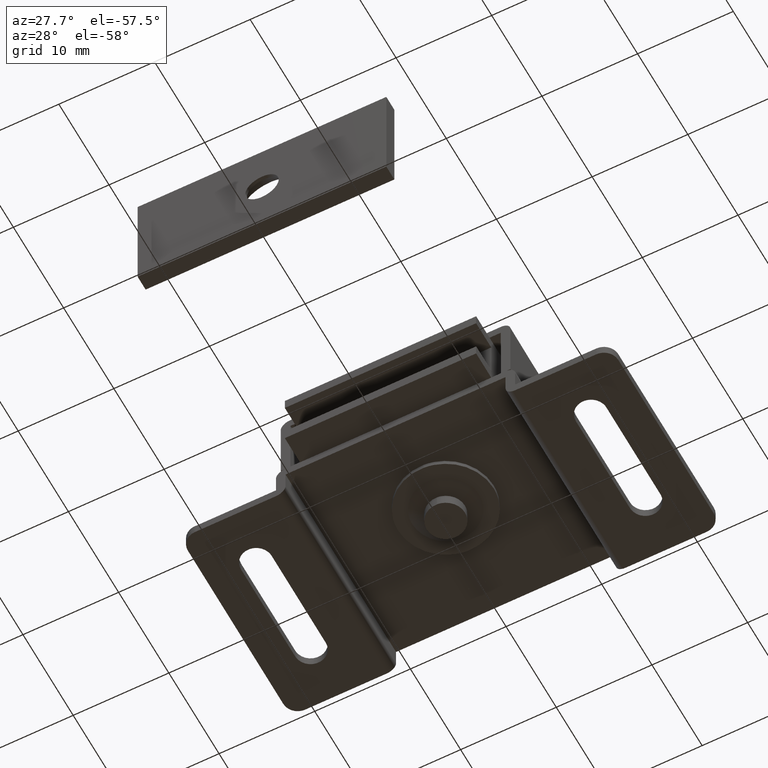
[diagram: clean part render]
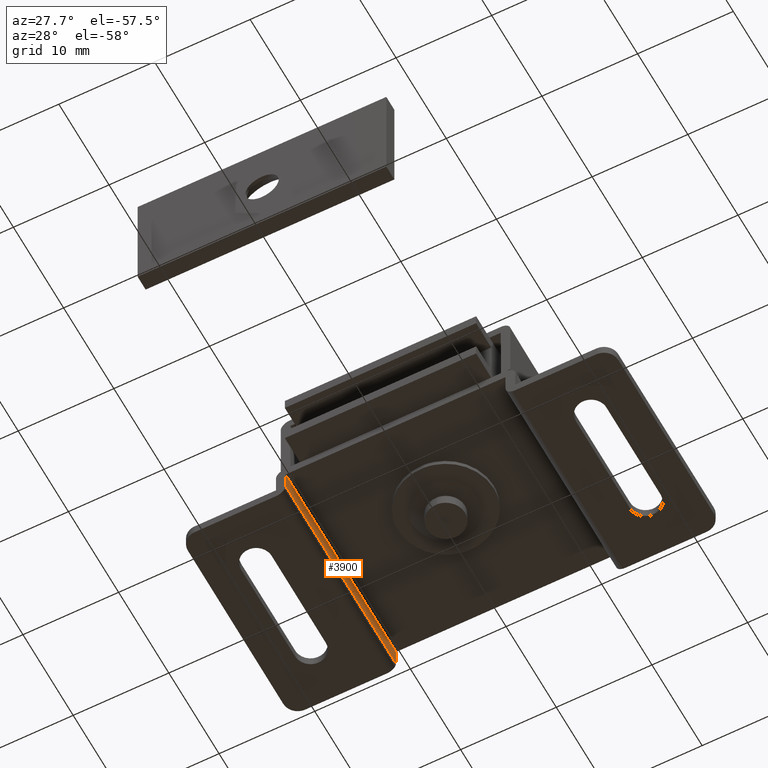
[diagram: same view with one face highlighted and labeled with its STEP entity id]
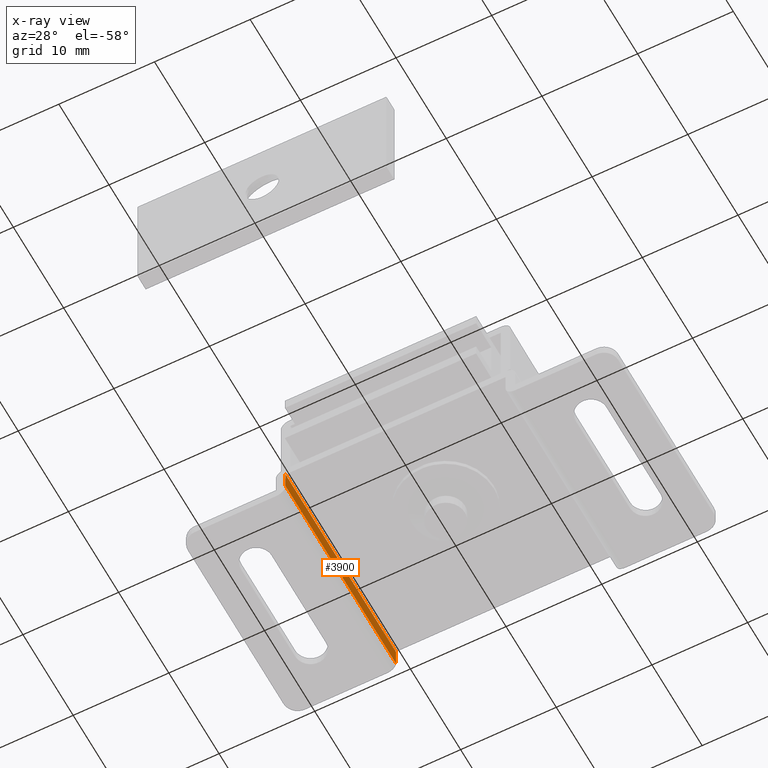
[diagram: x-ray of the same camera — body ghosted, the highlighted face saturated]
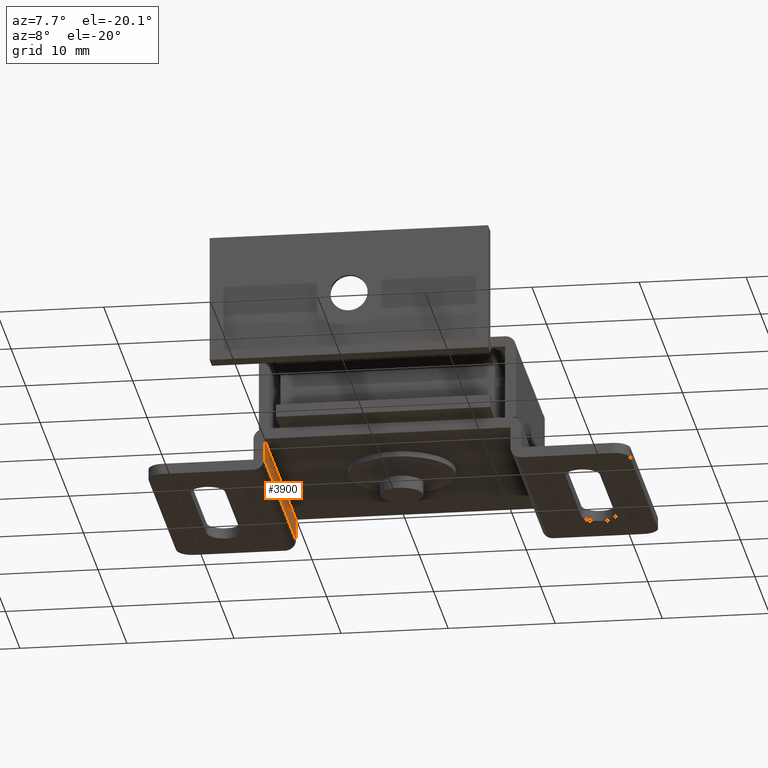
[diagram: same view with one face highlighted and labeled with its STEP entity id]
A machine part, auxiliary view. The second image highlights one B-rep face of the part: STEP entity #3900.
The next image is the same camera in x-ray: the body ghosted, the highlighted face saturated — about 0% of this face is hidden behind the body in this view.
A second angle (auxiliary view) of the same face is appended — the face is thin or edge-on in the first view.
In plain terms, the highlighted face is a freeform B-spline surface patch.
Its self-contained STEP definition (entity closure, byte-faithful):
#3838=CARTESIAN_POINT('',(-11.500000000000000,-22.0,3.0));
#3839=VERTEX_POINT('',#3838);
#3845=CARTESIAN_POINT('',(-11.500000000000000,0.0,3.0));
#3846=VERTEX_POINT('',#3845);
#3847=CARTESIAN_POINT('',(-11.500000000000000,0.0,3.0));
#3848=CARTESIAN_POINT('',(-11.500000000000000,-22.0,3.0));
#3849=QUASI_UNIFORM_CURVE('',1,(#3847,#3848),.UNSPECIFIED.,.F.,.U.);
#3850=EDGE_CURVE('',#3846,#3839,#3849,.T.);
#3873=CARTESIAN_POINT('',(-11.500000000000000,-23.098899957359730,3.099899996123614));
#3874=CARTESIAN_POINT('',(-11.500000000000000,-23.098899957359730,0.900099950232178));
#3875=CARTESIAN_POINT('',(-11.500000000000000,1.098900547445714,3.099899996123614));
#3876=CARTESIAN_POINT('',(-11.500000000000000,1.098900547445714,0.900099950232178));
#3877=B_SPLINE_SURFACE_WITH_KNOTS('',1,1,((#3873,#3875),(#3874,#3876)),.UNSPECIFIED.,.F.,.F.,.U.,(2,2),(2,2),(0.0,2.199800045891435),(0.0,24.197800504805439),.UNSPECIFIED.);
#3878=CARTESIAN_POINT('',(-11.500000000000000,-22.0,0.999999999999972));
#3879=VERTEX_POINT('',#3878);
#3880=CARTESIAN_POINT('',(-11.500000000000000,-22.0,0.999999999999972));
#3881=CARTESIAN_POINT('',(-11.500000000000000,-22.0,3.0));
#3882=QUASI_UNIFORM_CURVE('',1,(#3880,#3881),.UNSPECIFIED.,.F.,.U.);
#3883=EDGE_CURVE('',#3879,#3839,#3882,.T.);
#3884=ORIENTED_EDGE('',*,*,#3883,.F.);
#3885=CARTESIAN_POINT('',(-11.500000000000000,0.0,0.999999999999972));
#3886=VERTEX_POINT('',#3885);
#3887=CARTESIAN_POINT('',(-11.500000000000000,-22.0,0.999999999999972));
#3888=CARTESIAN_POINT('',(-11.500000000000000,0.0,0.999999999999972));
#3889=QUASI_UNIFORM_CURVE('',1,(#3887,#3888),.UNSPECIFIED.,.F.,.U.);
#3890=EDGE_CURVE('',#3879,#3886,#3889,.T.);
#3891=ORIENTED_EDGE('',*,*,#3890,.T.);
#3892=CARTESIAN_POINT('',(-11.500000000000000,0.0,0.999999999999972));
#3893=CARTESIAN_POINT('',(-11.500000000000000,0.0,3.0));
#3894=QUASI_UNIFORM_CURVE('',1,(#3892,#3893),.UNSPECIFIED.,.F.,.U.);
#3895=EDGE_CURVE('',#3886,#3846,#3894,.T.);
#3896=ORIENTED_EDGE('',*,*,#3895,.T.);
#3897=ORIENTED_EDGE('',*,*,#3850,.T.);
#3898=EDGE_LOOP('',(#3884,#3891,#3896,#3897));
#3899=FACE_OUTER_BOUND('',#3898,.T.);
#3900=ADVANCED_FACE('',(#3899),#3877,.T.);